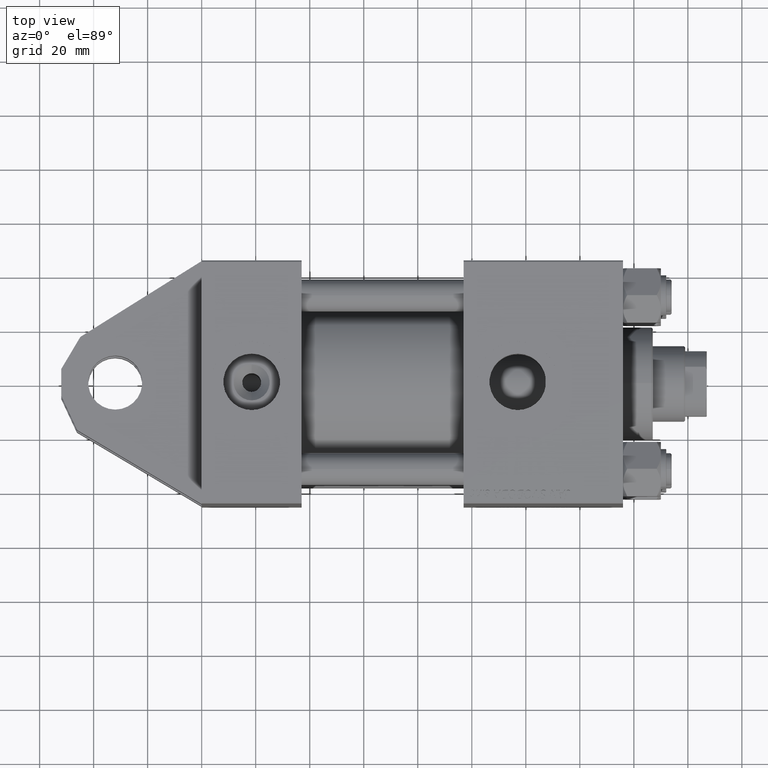
[diagram: clean part render]
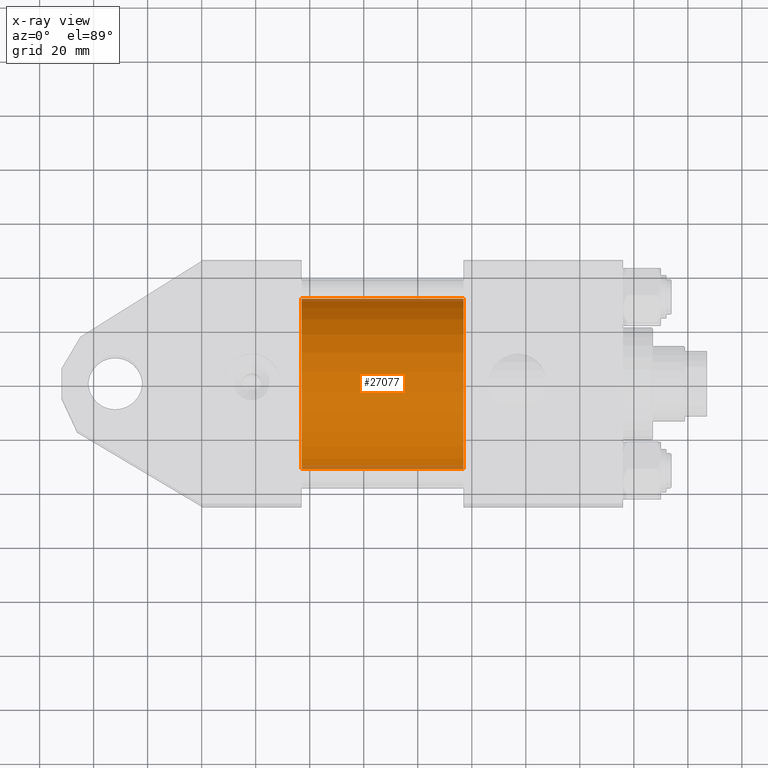
[diagram: x-ray — body ghosted, one internal face saturated and labeled with its STEP entity id]
A machine part, top view, then the same camera in x-ray: the body is ghosted and one INTERNAL B-rep face — a face not visible from any outside direction — is saturated and labeled: STEP entity #27077.
In plain terms, the highlighted cylindrical surface (partial cylindrical patch) has radius 31.5 mm, axis along (-1, -0, 0).
Its self-contained STEP definition (entity closure, byte-faithful):
#254 = EDGE_CURVE ( 'NONE', #25136, #44378, #39470, .T. ) ;
#1613 = DIRECTION ( 'NONE',  ( 0.000000000000000000, 0.000000000000000000, -1.000000000000000000 ) ) ;
#5113 = CARTESIAN_POINT ( 'NONE',  ( 97.00000000000000000, 3.881904653605483521E-16, -31.50000000000000000 ) ) ;
#5581 = ORIENTED_EDGE ( 'NONE', *, *, #15797, .T. ) ;
#8183 = CIRCLE ( 'NONE', #49136, 31.50000000000000000 ) ;
#8591 = EDGE_LOOP ( 'NONE', ( #5581, #9434, #48844, #28213 ) ) ;
#9434 = ORIENTED_EDGE ( 'NONE', *, *, #34721, .T. ) ;
#14354 = CARTESIAN_POINT ( 'NONE',  ( 97.00000000000000000, -3.469446951953614189E-15, 31.50000000000000000 ) ) ;
#14995 = CARTESIAN_POINT ( 'NONE',  ( 37.00000000000000000, -3.469446951953614189E-15, 0.000000000000000000 ) ) ;
#15797 = EDGE_CURVE ( 'NONE', #25136, #29587, #36290, .T. ) ;
#16430 = EDGE_CURVE ( 'NONE', #44378, #21018, #8183, .T. ) ;
#20600 = DIRECTION ( 'NONE',  ( -1.000000000000000000, -0.000000000000000000, -0.000000000000000000 ) ) ;
#21018 = VERTEX_POINT ( 'NONE', #25409 ) ;
#22882 = FACE_OUTER_BOUND ( 'NONE', #8591, .T. ) ;
#24221 = AXIS2_PLACEMENT_3D ( 'NONE', #40089, #36573, #1613 ) ;
#25136 = VERTEX_POINT ( 'NONE', #14354 ) ;
#25409 = CARTESIAN_POINT ( 'NONE',  ( 37.00000000000000000, 3.881904653605483521E-16, -31.50000000000000000 ) ) ;
#26864 = AXIS2_PLACEMENT_3D ( 'NONE', #38227, #26913, #46536 ) ;
#26913 = DIRECTION ( 'NONE',  ( -1.000000000000000000, -0.000000000000000000, -0.000000000000000000 ) ) ;
#27077 = ADVANCED_FACE ( 'NONE', ( #22882 ), #38480, .F. ) ;
#28213 = ORIENTED_EDGE ( 'NONE', *, *, #254, .F. ) ;
#28531 = CARTESIAN_POINT ( 'NONE',  ( 97.00000000000000000, 3.881904653605483521E-16, -31.50000000000000000 ) ) ;
#29587 = VERTEX_POINT ( 'NONE', #5113 ) ;
#30527 = CARTESIAN_POINT ( 'NONE',  ( 37.00000000000000000, -3.469446951953614189E-15, 31.50000000000000000 ) ) ;
#31683 = CARTESIAN_POINT ( 'NONE',  ( 97.00000000000000000, -3.469446951953614189E-15, 31.50000000000000000 ) ) ;
#31867 = VECTOR ( 'NONE', #43871, 1000.000000000000000 ) ;
#32307 = LINE ( 'NONE', #28531, #31867 ) ;
#34721 = EDGE_CURVE ( 'NONE', #29587, #21018, #32307, .T. ) ;
#36290 = CIRCLE ( 'NONE', #24221, 31.50000000000000000 ) ;
#36299 = VECTOR ( 'NONE', #20600, 1000.000000000000000 ) ;
#36573 = DIRECTION ( 'NONE',  ( 1.000000000000000000, 0.000000000000000000, 0.000000000000000000 ) ) ;
#38227 = CARTESIAN_POINT ( 'NONE',  ( 97.00000000000000000, -3.469446951953614189E-15, 0.000000000000000000 ) ) ;
#38480 = CYLINDRICAL_SURFACE ( 'NONE', #26864, 31.50000000000000000 ) ;
#39470 = LINE ( 'NONE', #31683, #36299 ) ;
#40089 = CARTESIAN_POINT ( 'NONE',  ( 97.00000000000000000, -3.469446951953614189E-15, 0.000000000000000000 ) ) ;
#41888 = DIRECTION ( 'NONE',  ( 0.000000000000000000, 0.000000000000000000, -1.000000000000000000 ) ) ;
#43871 = DIRECTION ( 'NONE',  ( -1.000000000000000000, -0.000000000000000000, -0.000000000000000000 ) ) ;
#44378 = VERTEX_POINT ( 'NONE', #30527 ) ;
#46536 = DIRECTION ( 'NONE',  ( 0.000000000000000000, 0.000000000000000000, 1.000000000000000000 ) ) ;
#48844 = ORIENTED_EDGE ( 'NONE', *, *, #16430, .F. ) ;
#49136 = AXIS2_PLACEMENT_3D ( 'NONE', #14995, #49441, #41888 ) ;
#49441 = DIRECTION ( 'NONE',  ( 1.000000000000000000, 0.000000000000000000, 0.000000000000000000 ) ) ;